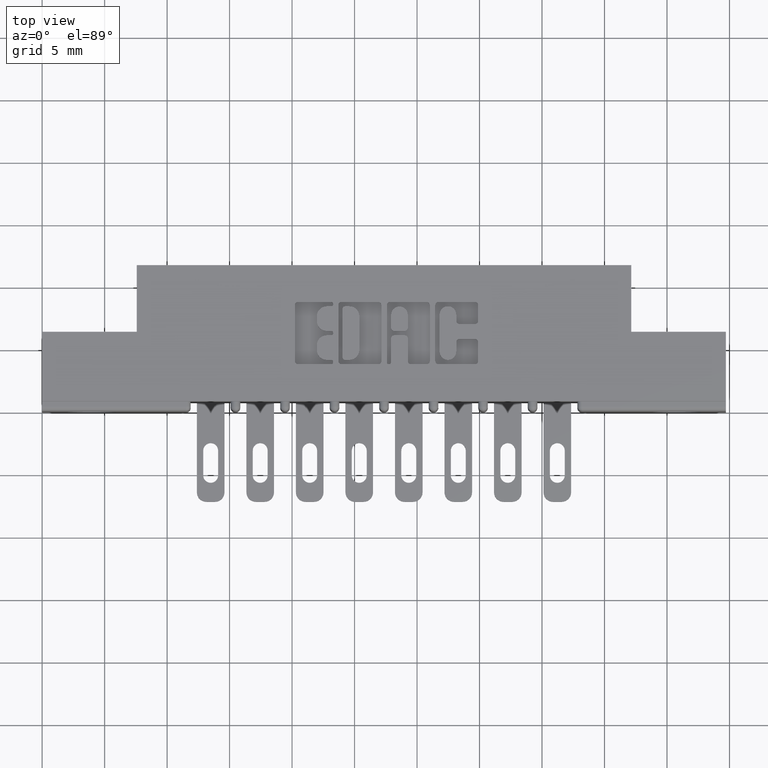
[diagram: clean part render]
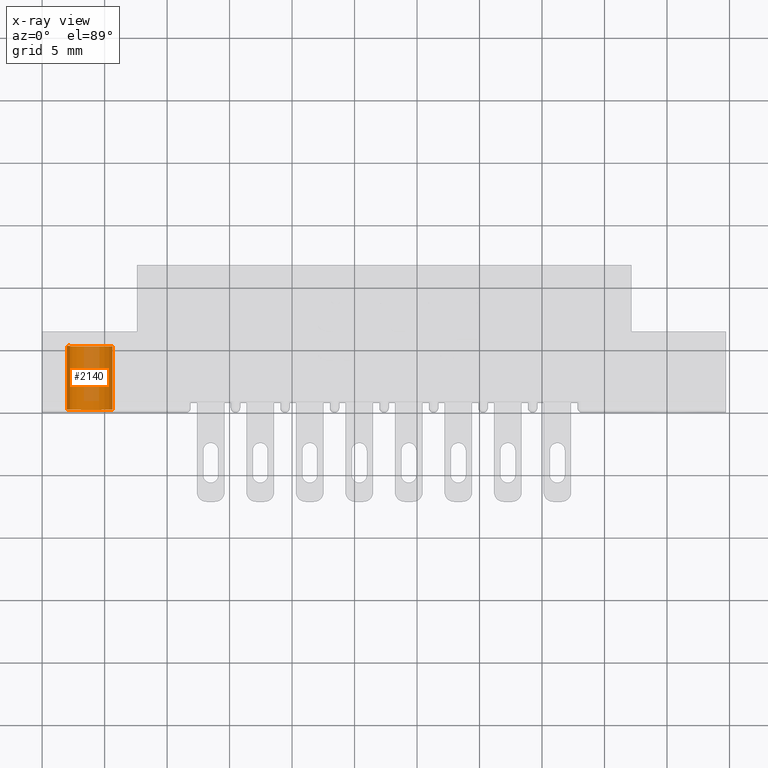
[diagram: x-ray — body ghosted, one internal face saturated and labeled with its STEP entity id]
A machine part, top view, then the same camera in x-ray: the body is ghosted and one INTERNAL B-rep face — a face not visible from any outside direction — is saturated and labeled: STEP entity #2140.
In plain terms, the highlighted cylindrical surface (edge-blend (fillet) strip) has radius 1.9685 mm, axis along (-0, 1, 0).
Its self-contained STEP definition (entity closure, byte-faithful):
#1092 = VERTEX_POINT ( 'NONE', #4267 ) ;
#1124 = ORIENTED_EDGE ( 'NONE', *, *, #3923, .T. ) ;
#1677 = EDGE_CURVE ( 'NONE', #5314, #9726, #7500, .T. ) ;
#1701 = CYLINDRICAL_SURFACE ( 'NONE', #3769, 0.07749999999999999944 ) ;
#2140 = ADVANCED_FACE ( 'NONE', ( #2712 ), #1701, .T. ) ;
#2310 = VERTEX_POINT ( 'NONE', #4918 ) ;
#2700 = CARTESIAN_POINT ( 'NONE',  ( 9.491012693391986370E-18, 0.2400000000000000466, 0.07749999999999999944 ) ) ;
#2712 = FACE_OUTER_BOUND ( 'NONE', #8725, .T. ) ;
#3021 = DIRECTION ( 'NONE',  ( -0.0000000000000000000, -1.000000000000000000, -0.0000000000000000000 ) ) ;
#3552 = CARTESIAN_POINT ( 'NONE',  ( 9.491012693391986370E-18, 0.2400000000000000466, 0.07749999999999999944 ) ) ;
#3769 = AXIS2_PLACEMENT_3D ( 'NONE', #4590, #5778, #9953 ) ;
#3833 = ORIENTED_EDGE ( 'NONE', *, *, #11344, .F. ) ;
#3923 = EDGE_CURVE ( 'NONE', #5314, #1092, #6772, .T. ) ;
#4267 = CARTESIAN_POINT ( 'NONE',  ( 0.0000000000000000000, 0.04000000000000000083, -0.07749999999999999944 ) ) ;
#4590 = CARTESIAN_POINT ( 'NONE',  ( 0.0000000000000000000, 0.2400000000000000466, 0.0000000000000000000 ) ) ;
#4787 = CARTESIAN_POINT ( 'NONE',  ( 0.0000000000000000000, 0.04000000000000000083, 0.0000000000000000000 ) ) ;
#4918 = CARTESIAN_POINT ( 'NONE',  ( 9.491012693391986370E-18, 0.04000000000000000083, 0.07749999999999999944 ) ) ;
#5314 = VERTEX_POINT ( 'NONE', #6297 ) ;
#5618 = LINE ( 'NONE', #3552, #7792 ) ;
#5778 = DIRECTION ( 'NONE',  ( -0.0000000000000000000, -1.000000000000000000, -0.0000000000000000000 ) ) ;
#6031 = ORIENTED_EDGE ( 'NONE', *, *, #1677, .F. ) ;
#6233 = VECTOR ( 'NONE', #3021, 39.37007874015748143 ) ;
#6297 = CARTESIAN_POINT ( 'NONE',  ( 0.0000000000000000000, 0.2400000000000000466, -0.07749999999999999944 ) ) ;
#6520 = DIRECTION ( 'NONE',  ( 0.0000000000000000000, 1.000000000000000000, 0.0000000000000000000 ) ) ;
#6741 = DIRECTION ( 'NONE',  ( 0.0000000000000000000, 0.0000000000000000000, 1.000000000000000000 ) ) ;
#6772 = LINE ( 'NONE', #11058, #6233 ) ;
#7318 = AXIS2_PLACEMENT_3D ( 'NONE', #4787, #6520, #11878 ) ;
#7500 = CIRCLE ( 'NONE', #8790, 0.07749999999999999944 ) ;
#7792 = VECTOR ( 'NONE', #11589, 39.37007874015748143 ) ;
#7876 = CARTESIAN_POINT ( 'NONE',  ( 0.0000000000000000000, 0.2400000000000000466, 0.0000000000000000000 ) ) ;
#8483 = EDGE_CURVE ( 'NONE', #1092, #2310, #12848, .T. ) ;
#8725 = EDGE_LOOP ( 'NONE', ( #3833, #6031, #1124, #13197 ) ) ;
#8790 = AXIS2_PLACEMENT_3D ( 'NONE', #7876, #10962, #6741 ) ;
#9726 = VERTEX_POINT ( 'NONE', #2700 ) ;
#9953 = DIRECTION ( 'NONE',  ( 0.0000000000000000000, 0.0000000000000000000, -1.000000000000000000 ) ) ;
#10962 = DIRECTION ( 'NONE',  ( 0.0000000000000000000, 1.000000000000000000, 0.0000000000000000000 ) ) ;
#11058 = CARTESIAN_POINT ( 'NONE',  ( 0.0000000000000000000, 0.2400000000000000466, -0.07749999999999999944 ) ) ;
#11344 = EDGE_CURVE ( 'NONE', #9726, #2310, #5618, .T. ) ;
#11589 = DIRECTION ( 'NONE',  ( -0.0000000000000000000, -1.000000000000000000, -0.0000000000000000000 ) ) ;
#11878 = DIRECTION ( 'NONE',  ( 0.0000000000000000000, 0.0000000000000000000, 1.000000000000000000 ) ) ;
#12848 = CIRCLE ( 'NONE', #7318, 0.07749999999999999944 ) ;
#13197 = ORIENTED_EDGE ( 'NONE', *, *, #8483, .T. ) ;